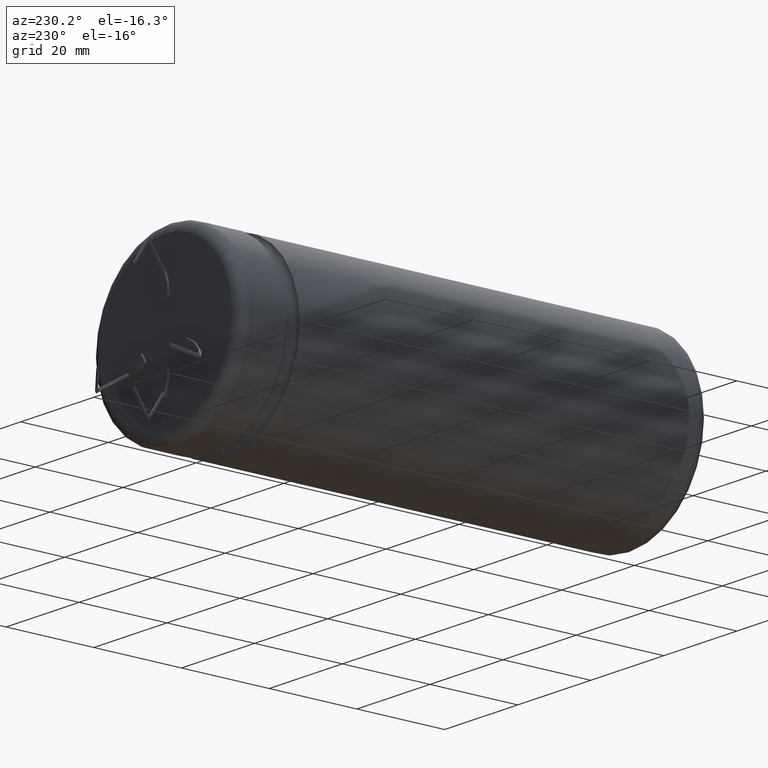
[diagram: clean part render]
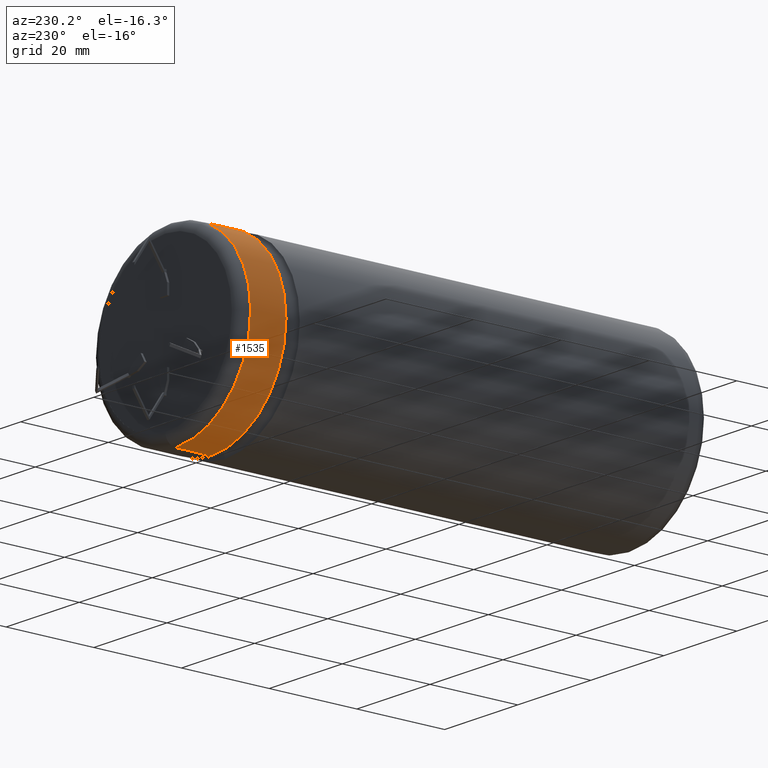
[diagram: same view with one face highlighted and labeled with its STEP entity id]
A machine part, auxiliary view. The second image highlights one B-rep face of the part: STEP entity #1535.
In plain terms, the highlighted cylindrical surface (partial cylindrical patch) has radius 20.5 mm, axis along (-0, -1, -0).
Its self-contained STEP definition (entity closure, byte-faithful):
#88 = CARTESIAN_POINT ( 'NONE',  ( 0.0000000000000000000, 96.57685999999999600, -20.49999999999999600 ) ) ;
#142 = AXIS2_PLACEMENT_3D ( 'NONE', #3313, #2599, #2589 ) ;
#195 = CARTESIAN_POINT ( 'NONE',  ( 2.510525938252074500E-015, 107.0000000000000000, 20.50000000000000000 ) ) ;
#206 = AXIS2_PLACEMENT_3D ( 'NONE', #538, #2296, #3479 ) ;
#421 = DIRECTION ( 'NONE',  ( 0.0000000000000000000, 0.0000000000000000000, 1.000000000000000000 ) ) ;
#538 = CARTESIAN_POINT ( 'NONE',  ( 0.0000000000000000000, 107.0000000000000000, 0.0000000000000000000 ) ) ;
#895 = EDGE_CURVE ( 'NONE', #2580, #4649, #4565, .T. ) ;
#1133 = CIRCLE ( 'NONE', #4445, 20.49999999999999600 ) ;
#1184 = DIRECTION ( 'NONE',  ( -0.0000000000000000000, -1.000000000000000000, -0.0000000000000000000 ) ) ;
#1356 = VECTOR ( 'NONE', #4265, 1000.000000000000000 ) ;
#1452 = ORIENTED_EDGE ( 'NONE', *, *, #895, .T. ) ;
#1472 = EDGE_CURVE ( 'NONE', #4014, #3039, #1805, .T. ) ;
#1535 = ADVANCED_FACE ( 'NONE', ( #3790 ), #4173, .T. ) ;
#1545 = CARTESIAN_POINT ( 'NONE',  ( 0.0000000000000000000, 96.57685999999999600, 0.0000000000000000000 ) ) ;
#1586 = ORIENTED_EDGE ( 'NONE', *, *, #3136, .T. ) ;
#1805 = LINE ( 'NONE', #195, #4560 ) ;
#1882 = CIRCLE ( 'NONE', #142, 20.50000000000000000 ) ;
#2105 = EDGE_LOOP ( 'NONE', ( #2759, #1586, #1452, #4353 ) ) ;
#2265 = CARTESIAN_POINT ( 'NONE',  ( 2.510525938252074500E-015, 104.6383999999999900, 20.50000000000000000 ) ) ;
#2296 = DIRECTION ( 'NONE',  ( -0.0000000000000000000, -1.000000000000000000, -0.0000000000000000000 ) ) ;
#2580 = VERTEX_POINT ( 'NONE', #4202 ) ;
#2589 = DIRECTION ( 'NONE',  ( 0.0000000000000000000, 0.0000000000000000000, 1.000000000000000000 ) ) ;
#2599 = DIRECTION ( 'NONE',  ( -0.0000000000000000000, -1.000000000000000000, -0.0000000000000000000 ) ) ;
#2759 = ORIENTED_EDGE ( 'NONE', *, *, #1472, .F. ) ;
#3039 = VERTEX_POINT ( 'NONE', #4141 ) ;
#3136 = EDGE_CURVE ( 'NONE', #4014, #2580, #1882, .T. ) ;
#3313 = CARTESIAN_POINT ( 'NONE',  ( 0.0000000000000000000, 104.6383999999999900, 0.0000000000000000000 ) ) ;
#3479 = DIRECTION ( 'NONE',  ( 0.0000000000000000000, 0.0000000000000000000, -1.000000000000000000 ) ) ;
#3564 = CARTESIAN_POINT ( 'NONE',  ( 0.0000000000000000000, 107.0000000000000000, -20.50000000000000000 ) ) ;
#3718 = EDGE_CURVE ( 'NONE', #4649, #3039, #1133, .T. ) ;
#3790 = FACE_OUTER_BOUND ( 'NONE', #2105, .T. ) ;
#4014 = VERTEX_POINT ( 'NONE', #2265 ) ;
#4105 = DIRECTION ( 'NONE',  ( -0.0000000000000000000, 1.000000000000000000, -0.0000000000000000000 ) ) ;
#4141 = CARTESIAN_POINT ( 'NONE',  ( 2.510525938252074500E-015, 96.57685999999999600, 20.49999999999999600 ) ) ;
#4173 = CYLINDRICAL_SURFACE ( 'NONE', #206, 20.50000000000000000 ) ;
#4202 = CARTESIAN_POINT ( 'NONE',  ( 0.0000000000000000000, 104.6383999999999900, -20.50000000000000000 ) ) ;
#4265 = DIRECTION ( 'NONE',  ( -0.0000000000000000000, -1.000000000000000000, -0.0000000000000000000 ) ) ;
#4353 = ORIENTED_EDGE ( 'NONE', *, *, #3718, .T. ) ;
#4445 = AXIS2_PLACEMENT_3D ( 'NONE', #1545, #4105, #421 ) ;
#4560 = VECTOR ( 'NONE', #1184, 1000.000000000000000 ) ;
#4565 = LINE ( 'NONE', #3564, #1356 ) ;
#4649 = VERTEX_POINT ( 'NONE', #88 ) ;